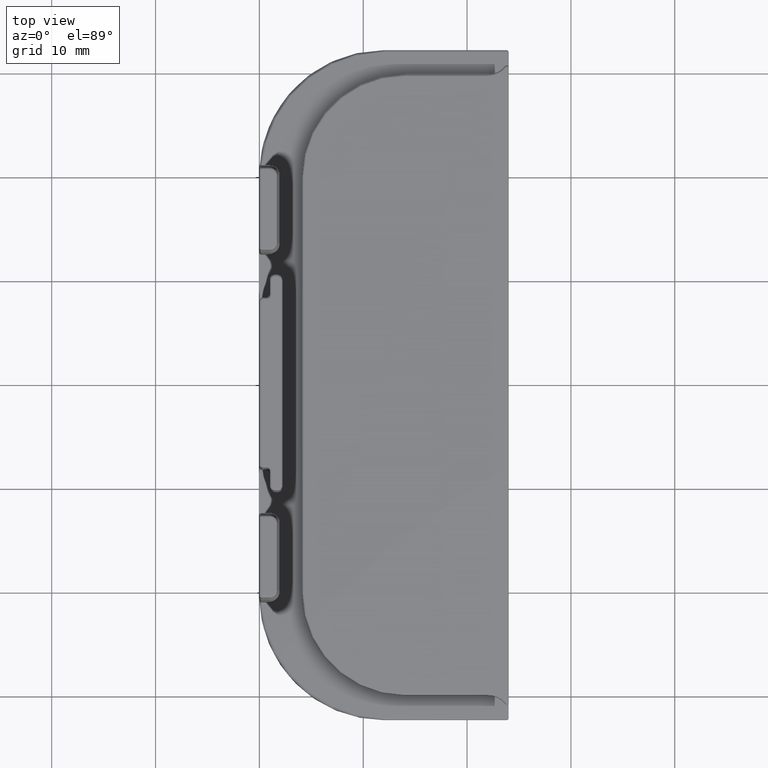
[diagram: clean part render]
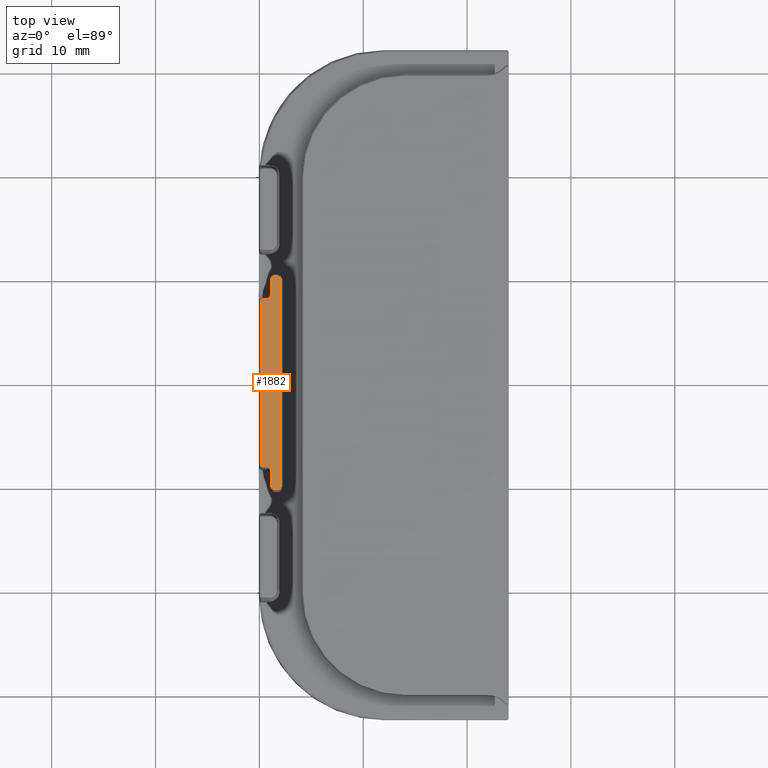
[diagram: same view with one face highlighted and labeled with its STEP entity id]
A machine part, top view. The second image highlights one B-rep face of the part: STEP entity #1882.
In plain terms, the highlighted planar face has unit normal (-0, -0, 1).
Its self-contained STEP definition (entity closure, byte-faithful):
#48=PLANE('',#2063);
#122=FACE_OUTER_BOUND('',#246,.T.);
#246=EDGE_LOOP('',(#1329,#1330,#1331,#1332,#1333,#1334,#1335,#1336,#1337,
#1338,#1339,#1340,#1341,#1342,#1343,#1344));
#346=LINE('',#2939,#489);
#348=LINE('',#2975,#491);
#351=LINE('',#2982,#494);
#352=LINE('',#2999,#495);
#355=LINE('',#3006,#498);
#356=LINE('',#3023,#499);
#359=LINE('',#3030,#502);
#361=LINE('',#3045,#504);
#489=VECTOR('',#2272,10.);
#491=VECTOR('',#2292,10.);
#494=VECTOR('',#2299,10.);
#495=VECTOR('',#2320,10.);
#498=VECTOR('',#2327,10.);
#499=VECTOR('',#2348,10.);
#502=VECTOR('',#2355,10.);
#504=VECTOR('',#2375,10.);
#635=CIRCLE('',#2009,0.0999999999999999);
#639=CIRCLE('',#2013,0.1);
#643=CIRCLE('',#2020,0.5);
#647=CIRCLE('',#2025,0.5);
#651=CIRCLE('',#2032,0.3);
#655=CIRCLE('',#2037,0.3);
#659=CIRCLE('',#2044,0.3);
#663=CIRCLE('',#2049,0.3);
#766=VERTEX_POINT('',#2936);
#767=VERTEX_POINT('',#2938);
#770=VERTEX_POINT('',#2953);
#771=VERTEX_POINT('',#2966);
#774=VERTEX_POINT('',#2973);
#775=VERTEX_POINT('',#2978);
#778=VERTEX_POINT('',#2985);
#779=VERTEX_POINT('',#2990);
#782=VERTEX_POINT('',#2997);
#783=VERTEX_POINT('',#3002);
#786=VERTEX_POINT('',#3009);
#787=VERTEX_POINT('',#3014);
#790=VERTEX_POINT('',#3021);
#791=VERTEX_POINT('',#3026);
#794=VERTEX_POINT('',#3033);
#795=VERTEX_POINT('',#3038);
#934=EDGE_CURVE('',#766,#767,#346,.T.);
#938=EDGE_CURVE('',#770,#766,#635,.T.);
#942=EDGE_CURVE('',#767,#771,#639,.T.);
#944=EDGE_CURVE('',#774,#770,#348,.T.);
#948=EDGE_CURVE('',#771,#775,#351,.T.);
#950=EDGE_CURVE('',#778,#774,#643,.T.);
#954=EDGE_CURVE('',#775,#779,#647,.T.);
#956=EDGE_CURVE('',#782,#778,#352,.T.);
#960=EDGE_CURVE('',#779,#783,#355,.T.);
#962=EDGE_CURVE('',#786,#782,#651,.T.);
#966=EDGE_CURVE('',#783,#787,#655,.T.);
#968=EDGE_CURVE('',#790,#786,#356,.T.);
#972=EDGE_CURVE('',#787,#791,#359,.T.);
#974=EDGE_CURVE('',#794,#790,#659,.T.);
#978=EDGE_CURVE('',#791,#795,#663,.T.);
#980=EDGE_CURVE('',#795,#794,#361,.T.);
#1329=ORIENTED_EDGE('',*,*,#934,.F.);
#1330=ORIENTED_EDGE('',*,*,#938,.F.);
#1331=ORIENTED_EDGE('',*,*,#944,.F.);
#1332=ORIENTED_EDGE('',*,*,#950,.F.);
#1333=ORIENTED_EDGE('',*,*,#956,.F.);
#1334=ORIENTED_EDGE('',*,*,#962,.F.);
#1335=ORIENTED_EDGE('',*,*,#968,.F.);
#1336=ORIENTED_EDGE('',*,*,#974,.F.);
#1337=ORIENTED_EDGE('',*,*,#980,.F.);
#1338=ORIENTED_EDGE('',*,*,#978,.F.);
#1339=ORIENTED_EDGE('',*,*,#972,.F.);
#1340=ORIENTED_EDGE('',*,*,#966,.F.);
#1341=ORIENTED_EDGE('',*,*,#960,.F.);
#1342=ORIENTED_EDGE('',*,*,#954,.F.);
#1343=ORIENTED_EDGE('',*,*,#948,.F.);
#1344=ORIENTED_EDGE('',*,*,#942,.F.);
#1882=ADVANCED_FACE('',(#122),#48,.T.);
#2009=AXIS2_PLACEMENT_3D('',#2955,#2278,#2279);
#2013=AXIS2_PLACEMENT_3D('',#2970,#2286,#2287);
#2020=AXIS2_PLACEMENT_3D('',#2987,#2304,#2305);
#2025=AXIS2_PLACEMENT_3D('',#2994,#2314,#2315);
#2032=AXIS2_PLACEMENT_3D('',#3011,#2332,#2333);
#2037=AXIS2_PLACEMENT_3D('',#3018,#2342,#2343);
#2044=AXIS2_PLACEMENT_3D('',#3035,#2360,#2361);
#2049=AXIS2_PLACEMENT_3D('',#3042,#2370,#2371);
#2063=AXIS2_PLACEMENT_3D('',#3100,#2423,#2424);
#2272=DIRECTION('',(0.,1.,1.03164280803872E-31));
#2278=DIRECTION('center_axis',(2.33983008413655E-30,1.03164280803872E-31,
-1.));
#2279=DIRECTION('ref_axis',(-0.707106781186548,-0.707106781186547,-1.7274578818499E-30));
#2286=DIRECTION('center_axis',(2.33983008413655E-30,1.03164280803872E-31,
-1.));
#2287=DIRECTION('ref_axis',(-0.707106781186548,0.707106781186547,-1.5815615567846E-30));
#2292=DIRECTION('',(-1.,0.,-2.33983008413655E-30));
#2299=DIRECTION('',(1.,0.,2.33983008413655E-30));
#2304=DIRECTION('center_axis',(-2.33983008413655E-30,-1.03164280803872E-31,
1.));
#2305=DIRECTION('ref_axis',(0.707106781186548,0.707106781186547,1.7274578818499E-30));
#2314=DIRECTION('center_axis',(-2.33983008413655E-30,-1.03164280803872E-31,
1.));
#2315=DIRECTION('ref_axis',(0.707106781186548,-0.707106781186547,1.5815615567846E-30));
#2320=DIRECTION('',(0.,1.,1.03164280803872E-31));
#2327=DIRECTION('',(0.,1.,1.03164280803872E-31));
#2332=DIRECTION('center_axis',(2.33983008413655E-30,1.03164280803872E-31,
-1.));
#2333=DIRECTION('ref_axis',(-0.707106781186547,-0.707106781186548,-1.7274578818499E-30));
#2342=DIRECTION('center_axis',(2.33983008413655E-30,1.03164280803872E-31,
-1.));
#2343=DIRECTION('ref_axis',(-0.707106781186547,0.707106781186548,-1.58156155678459E-30));
#2348=DIRECTION('',(-1.,0.,-2.33983008413655E-30));
#2355=DIRECTION('',(1.,0.,2.33983008413655E-30));
#2360=DIRECTION('center_axis',(2.33983008413655E-30,1.03164280803872E-31,
-1.));
#2361=DIRECTION('ref_axis',(0.707106781186549,-0.707106781186546,1.5815615567846E-30));
#2370=DIRECTION('center_axis',(2.33983008413655E-30,1.03164280803872E-31,
-1.));
#2371=DIRECTION('ref_axis',(0.707106781186549,0.707106781186546,1.7274578818499E-30));
#2375=DIRECTION('',(0.,-1.,-1.03164280803872E-31));
#2423=DIRECTION('center_axis',(-2.33983008413655E-30,-1.03164280803872E-31,
1.));
#2424=DIRECTION('ref_axis',(1.,0.,2.33983008413655E-30));
#2936=CARTESIAN_POINT('',(0.200000000000001,-7.9,15.));
#2938=CARTESIAN_POINT('',(0.200000000000001,7.9,15.));
#2939=CARTESIAN_POINT('',(0.200000000000001,-10.125,15.));
#2953=CARTESIAN_POINT('',(0.300000000000001,-8.,15.));
#2955=CARTESIAN_POINT('Origin',(0.300000000000001,-7.9,15.));
#2966=CARTESIAN_POINT('',(0.300000000000001,8.,15.));
#2970=CARTESIAN_POINT('Origin',(0.300000000000001,7.9,15.));
#2973=CARTESIAN_POINT('',(0.700000000000003,-8.,15.));
#2975=CARTESIAN_POINT('',(0.947951534901772,-8.,15.));
#2978=CARTESIAN_POINT('',(0.700000000000003,8.,15.));
#2982=CARTESIAN_POINT('',(0.747951534901771,8.,15.));
#2985=CARTESIAN_POINT('',(1.2,-8.5,15.));
#2987=CARTESIAN_POINT('Origin',(0.700000000000003,-8.5,15.));
#2990=CARTESIAN_POINT('',(1.2,8.5,15.));
#2994=CARTESIAN_POINT('Origin',(0.700000000000003,8.5,15.));
#2997=CARTESIAN_POINT('',(1.2,-9.9,15.));
#2999=CARTESIAN_POINT('',(1.2,-4.95,15.));
#3002=CARTESIAN_POINT('',(1.2,9.9,15.));
#3006=CARTESIAN_POINT('',(1.2,4.25,15.));
#3009=CARTESIAN_POINT('',(1.5,-10.2,15.));
#3011=CARTESIAN_POINT('Origin',(1.5,-9.9,15.));
#3014=CARTESIAN_POINT('',(1.5,10.2,15.));
#3018=CARTESIAN_POINT('Origin',(1.5,9.9,15.));
#3021=CARTESIAN_POINT('',(1.7,-10.2,15.));
#3023=CARTESIAN_POINT('',(1.44795153490177,-10.2,15.));
#3026=CARTESIAN_POINT('',(1.7,10.2,15.));
#3030=CARTESIAN_POINT('',(1.34795153490177,10.2,15.));
#3033=CARTESIAN_POINT('',(2.,-9.9,15.));
#3035=CARTESIAN_POINT('Origin',(1.7,-9.9,15.));
#3038=CARTESIAN_POINT('',(2.,9.9,15.));
#3042=CARTESIAN_POINT('Origin',(1.7,9.9,15.));
#3045=CARTESIAN_POINT('',(2.,4.95,15.));
#3100=CARTESIAN_POINT('Origin',(1.19590306980354,2.25514051876985E-16,15.));